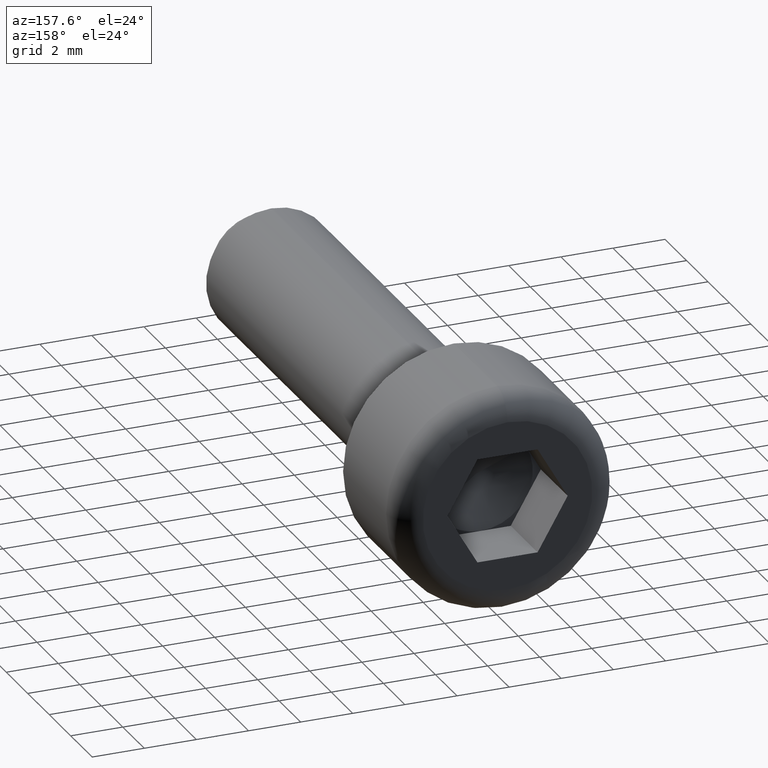
[diagram: clean part render]
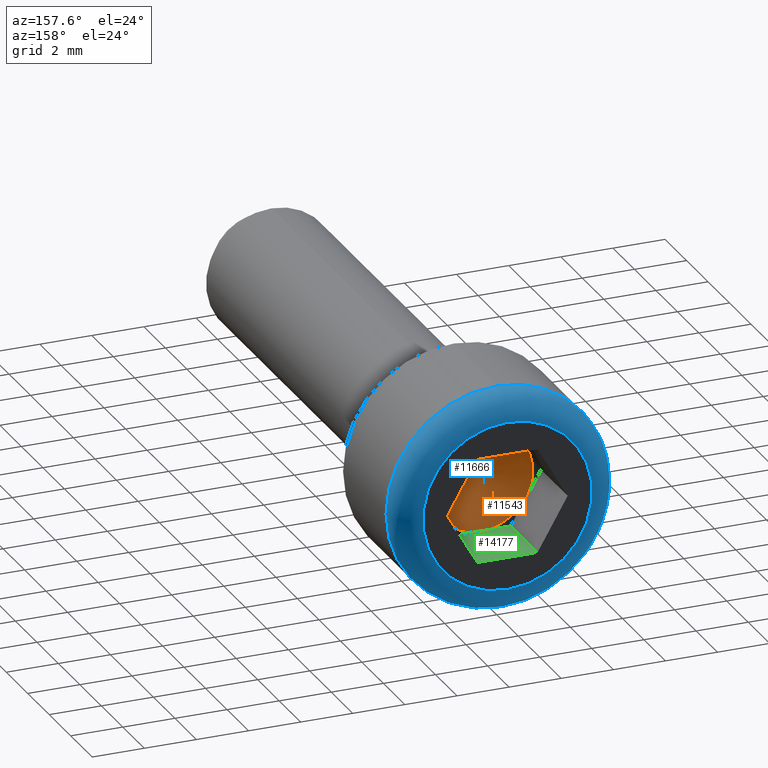
[diagram: same view with three faces highlighted in distinct colors, each labeled with its STEP entity id]
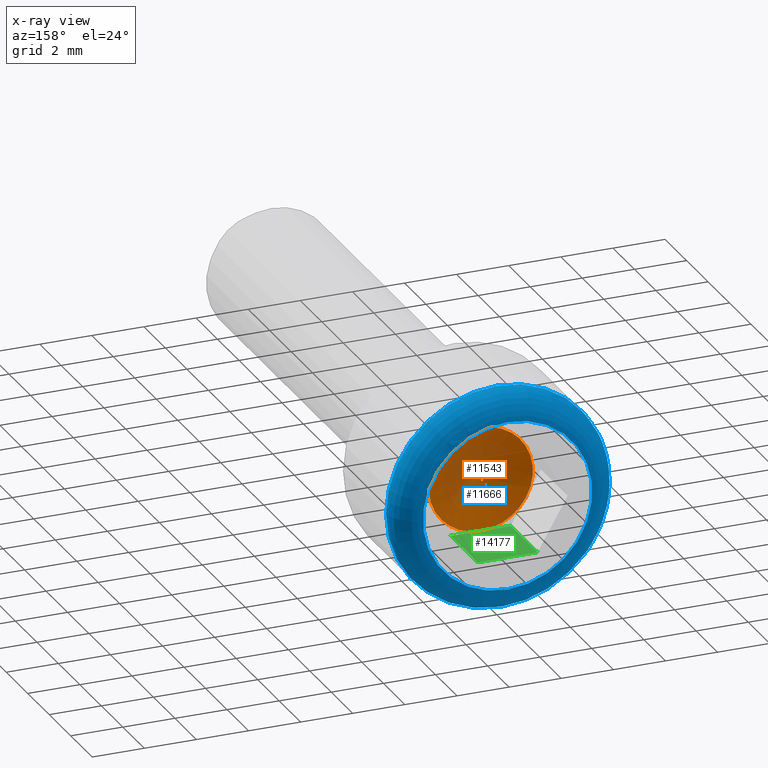
[diagram: x-ray of the same camera — body ghosted, the three highlighted faces saturated]
A machine part, auxiliary view with three faces highlighted in distinct colors.
The next image is the same camera in x-ray (body ghosted, the three faces saturated) — at least one of them is partly hidden behind the body in this view.
Their STEP definitions:

[orange] entity #11543 — the highlighted conical surface has half-angle 75.964 deg.
#364 = AXIS2_PLACEMENT_3D ( 'NONE', #5127, #13042, #1584 ) ;
#385 = CIRCLE ( 'NONE', #1146, 2.000000000000000000 ) ;
#525 = ORIENTED_EDGE ( 'NONE', *, *, #10332, .T. ) ;
#672 = FACE_OUTER_BOUND ( 'NONE', #1421, .T. ) ;
#746 = CARTESIAN_POINT ( 'NONE',  ( 2.595143592615286600E-017, 2.500000000000000400, 0.0000000000000000000 ) ) ;
#915 = ORIENTED_EDGE ( 'NONE', *, *, #2943, .T. ) ;
#1146 = AXIS2_PLACEMENT_3D ( 'NONE', #12782, #4776, #9086 ) ;
#1394 = CIRCLE ( 'NONE', #1922, 2.000000000000000000 ) ;
#1421 = EDGE_LOOP ( 'NONE', ( #525, #8799, #11106, #915, #11152, #7798 ) ) ;
#1425 = CIRCLE ( 'NONE', #4340, 2.000000000000000000 ) ;
#1569 = AXIS2_PLACEMENT_3D ( 'NONE', #10875, #5091, #2869 ) ;
#1584 = DIRECTION ( 'NONE',  ( -1.000000000000000000, 0.0000000000000000000, 0.0000000000000000000 ) ) ;
#1644 = CIRCLE ( 'NONE', #13821, 2.000000000000000000 ) ;
#1830 = VERTEX_POINT ( 'NONE', #2021 ) ;
#1922 = AXIS2_PLACEMENT_3D ( 'NONE', #5147, #12042, #14375 ) ;
#2021 = CARTESIAN_POINT ( 'NONE',  ( 2.595143592615286600E-017, 2.500000000000000400, -2.000000000000000000 ) ) ;
#2130 = CIRCLE ( 'NONE', #1569, 2.000000000000000000 ) ;
#2869 = DIRECTION ( 'NONE',  ( -1.000000000000000000, 0.0000000000000000000, 0.0000000000000000000 ) ) ;
#2943 = EDGE_CURVE ( 'NONE', #13294, #1830, #12513, .T. ) ;
#3117 = DIRECTION ( 'NONE',  ( 5.190287185230567100E-017, 1.000000000000000000, -0.0000000000000000000 ) ) ;
#3381 = DIRECTION ( 'NONE',  ( 5.190287185230567100E-017, 1.000000000000000000, -0.0000000000000000000 ) ) ;
#4340 = AXIS2_PLACEMENT_3D ( 'NONE', #746, #3117, #9882 ) ;
#4776 = DIRECTION ( 'NONE',  ( 5.190287185230567100E-017, 1.000000000000000000, -0.0000000000000000000 ) ) ;
#4983 = CARTESIAN_POINT ( 'NONE',  ( 1.732050807568877000, 2.500000000000000400, 1.000000000000000400 ) ) ;
#5091 = DIRECTION ( 'NONE',  ( 5.190287185230567100E-017, 1.000000000000000000, -0.0000000000000000000 ) ) ;
#5127 = CARTESIAN_POINT ( 'NONE',  ( 2.595143592615286600E-017, 2.500000000000000400, 0.0000000000000000000 ) ) ;
#5147 = CARTESIAN_POINT ( 'NONE',  ( 2.595143592615286600E-017, 2.500000000000000400, 0.0000000000000000000 ) ) ;
#5203 = DIRECTION ( 'NONE',  ( -1.000000000000000000, 0.0000000000000000000, 0.0000000000000000000 ) ) ;
#5540 = CARTESIAN_POINT ( 'NONE',  ( 5.190287185230567400E-014, 1002.000000000000000, 0.0000000000000000000 ) ) ;
#6201 = EDGE_CURVE ( 'NONE', #13995, #12890, #1644, .T. ) ;
#6654 = CARTESIAN_POINT ( 'NONE',  ( -1.732050807568877200, 2.500000000000000400, -1.000000000000000400 ) ) ;
#6875 = EDGE_CURVE ( 'NONE', #12890, #13294, #385, .T. ) ;
#7582 = CARTESIAN_POINT ( 'NONE',  ( -1.732050807568877200, 2.500000000000000400, 1.000000000000000200 ) ) ;
#7798 = ORIENTED_EDGE ( 'NONE', *, *, #12446, .T. ) ;
#8799 = ORIENTED_EDGE ( 'NONE', *, *, #6201, .T. ) ;
#9086 = DIRECTION ( 'NONE',  ( -1.000000000000000000, 0.0000000000000000000, 0.0000000000000000000 ) ) ;
#9390 = AXIS2_PLACEMENT_3D ( 'NONE', #5540, #3381, #11233 ) ;
#9700 = VERTEX_POINT ( 'NONE', #6654 ) ;
#9836 = DIRECTION ( 'NONE',  ( 5.190287185230567100E-017, 1.000000000000000000, -0.0000000000000000000 ) ) ;
#9882 = DIRECTION ( 'NONE',  ( -1.000000000000000000, 0.0000000000000000000, 0.0000000000000000000 ) ) ;
#10332 = EDGE_CURVE ( 'NONE', #10804, #13995, #1425, .T. ) ;
#10804 = VERTEX_POINT ( 'NONE', #7582 ) ;
#10875 = CARTESIAN_POINT ( 'NONE',  ( 2.595143592615286600E-017, 2.500000000000000400, 0.0000000000000000000 ) ) ;
#10985 = CARTESIAN_POINT ( 'NONE',  ( 2.595143592615286600E-017, 2.500000000000000400, 0.0000000000000000000 ) ) ;
#11106 = ORIENTED_EDGE ( 'NONE', *, *, #6875, .T. ) ;
#11152 = ORIENTED_EDGE ( 'NONE', *, *, #13719, .T. ) ;
#11233 = DIRECTION ( 'NONE',  ( -1.000000000000000000, 5.551115123125786400E-017, 0.0000000000000000000 ) ) ;
#11543 = ADVANCED_FACE ( 'NONE', ( #672 ), #12964, .F. ) ;
#12042 = DIRECTION ( 'NONE',  ( 5.190287185230567100E-017, 1.000000000000000000, -0.0000000000000000000 ) ) ;
#12446 = EDGE_CURVE ( 'NONE', #9700, #10804, #1394, .T. ) ;
#12513 = CIRCLE ( 'NONE', #364, 2.000000000000000000 ) ;
#12528 = CARTESIAN_POINT ( 'NONE',  ( 2.595143592615286600E-017, 2.500000000000000400, 2.000000000000000000 ) ) ;
#12782 = CARTESIAN_POINT ( 'NONE',  ( 2.595143592615286600E-017, 2.500000000000000400, 0.0000000000000000000 ) ) ;
#12890 = VERTEX_POINT ( 'NONE', #4983 ) ;
#12964 = CONICAL_SURFACE ( 'NONE', #9390, 3999.999999999997700, 1.325817663668032300 ) ;
#13042 = DIRECTION ( 'NONE',  ( 5.190287185230567100E-017, 1.000000000000000000, -0.0000000000000000000 ) ) ;
#13280 = CARTESIAN_POINT ( 'NONE',  ( 1.732050807568877200, 2.500000000000000400, -1.000000000000000400 ) ) ;
#13294 = VERTEX_POINT ( 'NONE', #13280 ) ;
#13719 = EDGE_CURVE ( 'NONE', #1830, #9700, #2130, .T. ) ;
#13821 = AXIS2_PLACEMENT_3D ( 'NONE', #10985, #9836, #5203 ) ;
#13995 = VERTEX_POINT ( 'NONE', #12528 ) ;
#14375 = DIRECTION ( 'NONE',  ( -1.000000000000000000, 0.0000000000000000000, 0.0000000000000000000 ) ) ;

[blue] entity #11666 — the highlighted toroidal blend (fillet) surface has major radius 3.25 mm and minor (blend) radius 1 mm.
#108 = AXIS2_PLACEMENT_3D ( 'NONE', #8304, #11798, #9633 ) ;
#640 = DIRECTION ( 'NONE',  ( 0.0000000000000000000, 0.0000000000000000000, 1.000000000000000000 ) ) ;
#1257 = AXIS2_PLACEMENT_3D ( 'NONE', #10113, #10273, #2151 ) ;
#1651 = VERTEX_POINT ( 'NONE', #8169 ) ;
#2114 = TOROIDAL_SURFACE ( 'NONE', #108, 3.250000000000000400, 1.000000000000000000 ) ;
#2151 = DIRECTION ( 'NONE',  ( 0.0000000000000000000, 0.0000000000000000000, 1.000000000000000000 ) ) ;
#4758 = ORIENTED_EDGE ( 'NONE', *, *, #9978, .F. ) ;
#5252 = DIRECTION ( 'NONE',  ( 0.0000000000000000000, 1.000000000000000000, 0.0000000000000000000 ) ) ;
#7174 = FACE_OUTER_BOUND ( 'NONE', #7739, .T. ) ;
#7739 = EDGE_LOOP ( 'NONE', ( #9841 ) ) ;
#8169 = CARTESIAN_POINT ( 'NONE',  ( 0.0000000000000000000, 5.000000000000000000, 3.250000000000000400 ) ) ;
#8304 = CARTESIAN_POINT ( 'NONE',  ( 0.0000000000000000000, 4.000000000000000000, 0.0000000000000000000 ) ) ;
#9633 = DIRECTION ( 'NONE',  ( 0.0000000000000000000, 0.0000000000000000000, 1.000000000000000000 ) ) ;
#9841 = ORIENTED_EDGE ( 'NONE', *, *, #10450, .F. ) ;
#9978 = EDGE_CURVE ( 'NONE', #1651, #1651, #11315, .T. ) ;
#10113 = CARTESIAN_POINT ( 'NONE',  ( 0.0000000000000000000, 4.000000000000000000, 0.0000000000000000000 ) ) ;
#10273 = DIRECTION ( 'NONE',  ( -0.0000000000000000000, -1.000000000000000000, -0.0000000000000000000 ) ) ;
#10450 = EDGE_CURVE ( 'NONE', #13031, #13031, #13693, .T. ) ;
#10759 = EDGE_LOOP ( 'NONE', ( #4758 ) ) ;
#11126 = FACE_OUTER_BOUND ( 'NONE', #10759, .T. ) ;
#11315 = CIRCLE ( 'NONE', #12081, 3.250000000000000400 ) ;
#11516 = CARTESIAN_POINT ( 'NONE',  ( 0.0000000000000000000, 4.000000000000000000, 4.250000000000000000 ) ) ;
#11666 = ADVANCED_FACE ( 'NONE', ( #7174, #11126 ), #2114, .T. ) ;
#11798 = DIRECTION ( 'NONE',  ( 0.0000000000000000000, 1.000000000000000000, 0.0000000000000000000 ) ) ;
#12081 = AXIS2_PLACEMENT_3D ( 'NONE', #13115, #5252, #640 ) ;
#13031 = VERTEX_POINT ( 'NONE', #11516 ) ;
#13115 = CARTESIAN_POINT ( 'NONE',  ( 0.0000000000000000000, 5.000000000000000000, 0.0000000000000000000 ) ) ;
#13693 = CIRCLE ( 'NONE', #1257, 4.250000000000000000 ) ;

[green] entity #14177 — the highlighted planar face has unit normal (-0, 0, -1).
#39 = FACE_OUTER_BOUND ( 'NONE', #11878, .T. ) ;
#256 = VECTOR ( 'NONE', #2411, 1000.000000000000000 ) ;
#1045 = VECTOR ( 'NONE', #12176, 1000.000000000000000 ) ;
#1830 = VERTEX_POINT ( 'NONE', #2021 ) ;
#2021 = CARTESIAN_POINT ( 'NONE',  ( 2.595143592615286600E-017, 2.500000000000000400, -2.000000000000000000 ) ) ;
#2096 = CARTESIAN_POINT ( 'NONE',  ( -1.154700538379251700, 2.500000000000000000, -1.999999999999999600 ) ) ;
#2189 = VECTOR ( 'NONE', #11173, 1000.000000000000000 ) ;
#2411 = DIRECTION ( 'NONE',  ( -1.000000000000000000, 0.0000000000000000000, 0.0000000000000000000 ) ) ;
#2677 = EDGE_CURVE ( 'NONE', #1830, #13350, #3315, .T. ) ;
#2856 = DIRECTION ( 'NONE',  ( -0.0000000000000000000, 0.0000000000000000000, -1.000000000000000000 ) ) ;
#3041 = EDGE_CURVE ( 'NONE', #4561, #5871, #7456, .T. ) ;
#3315 = LINE ( 'NONE', #3475, #256 ) ;
#3475 = CARTESIAN_POINT ( 'NONE',  ( 1.154700538379251200, 2.500000000000000000, -1.999999999999999600 ) ) ;
#4012 = DIRECTION ( 'NONE',  ( -1.000000000000000000, 0.0000000000000000000, 0.0000000000000000000 ) ) ;
#4110 = CARTESIAN_POINT ( 'NONE',  ( 1.154700538379251200, 2.500000000000000000, -1.999999999999999600 ) ) ;
#4561 = VERTEX_POINT ( 'NONE', #4857 ) ;
#4850 = VECTOR ( 'NONE', #14874, 1000.000000000000000 ) ;
#4857 = CARTESIAN_POINT ( 'NONE',  ( 1.154700538379251200, 5.000000000000000000, -1.999999999999999600 ) ) ;
#5217 = LINE ( 'NONE', #4110, #1045 ) ;
#5315 = DIRECTION ( 'NONE',  ( -1.000000000000000000, 0.0000000000000000000, 0.0000000000000000000 ) ) ;
#5720 = AXIS2_PLACEMENT_3D ( 'NONE', #12167, #2856, #4012 ) ;
#5871 = VERTEX_POINT ( 'NONE', #7921 ) ;
#6202 = VECTOR ( 'NONE', #5315, 1000.000000000000000 ) ;
#6360 = CARTESIAN_POINT ( 'NONE',  ( -1.154700538379251700, 2.500000000000000000, -1.999999999999999600 ) ) ;
#6410 = CARTESIAN_POINT ( 'NONE',  ( 1.154700538379251200, 5.000000000000000000, -1.999999999999999600 ) ) ;
#6621 = ORIENTED_EDGE ( 'NONE', *, *, #2677, .F. ) ;
#7456 = LINE ( 'NONE', #6410, #6202 ) ;
#7877 = LINE ( 'NONE', #10118, #4850 ) ;
#7921 = CARTESIAN_POINT ( 'NONE',  ( -1.154700538379251700, 5.000000000000000000, -1.999999999999999600 ) ) ;
#7959 = LINE ( 'NONE', #2096, #2189 ) ;
#8805 = EDGE_CURVE ( 'NONE', #12461, #1830, #5217, .T. ) ;
#10118 = CARTESIAN_POINT ( 'NONE',  ( 1.154700538379251200, 2.500000000000000000, -1.999999999999999600 ) ) ;
#11008 = PLANE ( 'NONE',  #5720 ) ;
#11173 = DIRECTION ( 'NONE',  ( -0.0000000000000000000, 1.000000000000000000, -0.0000000000000000000 ) ) ;
#11207 = ORIENTED_EDGE ( 'NONE', *, *, #11483, .T. ) ;
#11225 = ORIENTED_EDGE ( 'NONE', *, *, #3041, .T. ) ;
#11483 = EDGE_CURVE ( 'NONE', #12461, #4561, #7877, .T. ) ;
#11878 = EDGE_LOOP ( 'NONE', ( #11225, #12676, #6621, #14622, #11207 ) ) ;
#12167 = CARTESIAN_POINT ( 'NONE',  ( 1.154700538379251200, 2.500000000000000000, -1.999999999999999600 ) ) ;
#12176 = DIRECTION ( 'NONE',  ( -1.000000000000000000, 0.0000000000000000000, 0.0000000000000000000 ) ) ;
#12461 = VERTEX_POINT ( 'NONE', #13212 ) ;
#12676 = ORIENTED_EDGE ( 'NONE', *, *, #14607, .F. ) ;
#13212 = CARTESIAN_POINT ( 'NONE',  ( 1.154700538379251200, 2.500000000000000000, -1.999999999999999600 ) ) ;
#13350 = VERTEX_POINT ( 'NONE', #6360 ) ;
#14177 = ADVANCED_FACE ( 'NONE', ( #39 ), #11008, .F. ) ;
#14607 = EDGE_CURVE ( 'NONE', #13350, #5871, #7959, .T. ) ;
#14622 = ORIENTED_EDGE ( 'NONE', *, *, #8805, .F. ) ;
#14874 = DIRECTION ( 'NONE',  ( -0.0000000000000000000, 1.000000000000000000, -0.0000000000000000000 ) ) ;